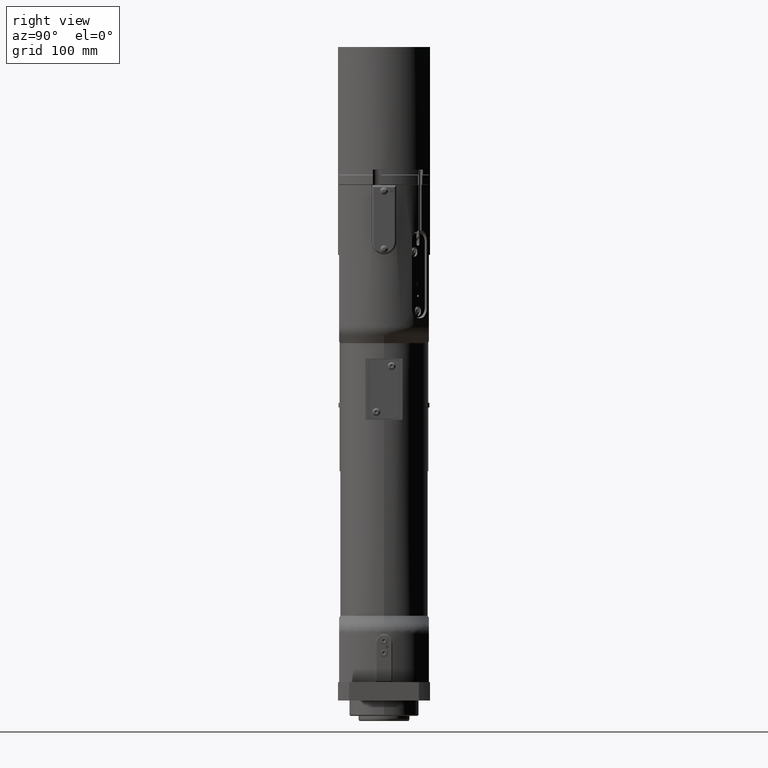
[diagram: clean part render]
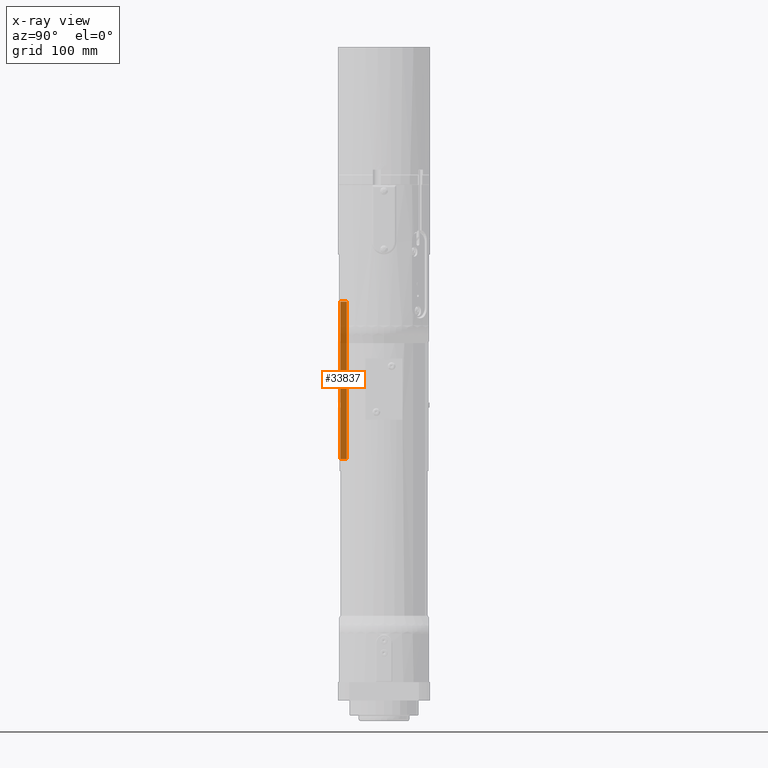
[diagram: x-ray — body ghosted, one internal face saturated and labeled with its STEP entity id]
A machine part, right view, then the same camera in x-ray: the body is ghosted and one INTERNAL B-rep face — a face not visible from any outside direction — is saturated and labeled: STEP entity #33837.
In plain terms, the highlighted planar face has unit normal (-1, 0, 0).
Its self-contained STEP definition (entity closure, byte-faithful):
#794=PLANE('',#35949);
#2266=FACE_OUTER_BOUND('',#4098,.T.);
#4098=EDGE_LOOP('',(#23063,#23064,#23065,#23066));
#8393=LINE('',#51774,#11089);
#8394=LINE('',#51778,#11090);
#8395=LINE('',#51780,#11091);
#8396=LINE('',#51781,#11092);
#11089=VECTOR('',#40845,10.);
#11090=VECTOR('',#40850,10.);
#11091=VECTOR('',#40851,10.);
#11092=VECTOR('',#40852,10.);
#13814=VERTEX_POINT('',#51771);
#13815=VERTEX_POINT('',#51773);
#13816=VERTEX_POINT('',#51777);
#13817=VERTEX_POINT('',#51779);
#17440=EDGE_CURVE('',#13814,#13815,#8393,.T.);
#17442=EDGE_CURVE('',#13814,#13816,#8394,.T.);
#17443=EDGE_CURVE('',#13816,#13817,#8395,.T.);
#17444=EDGE_CURVE('',#13815,#13817,#8396,.T.);
#23063=ORIENTED_EDGE('',*,*,#17440,.F.);
#23064=ORIENTED_EDGE('',*,*,#17442,.T.);
#23065=ORIENTED_EDGE('',*,*,#17443,.T.);
#23066=ORIENTED_EDGE('',*,*,#17444,.F.);
#33837=ADVANCED_FACE('',(#2266),#794,.F.);
#35949=AXIS2_PLACEMENT_3D('',#51776,#40848,#40849);
#40845=DIRECTION('',(5.56813700511382E-14,1.00722983923794E-14,1.));
#40848=DIRECTION('center_axis',(-1.,2.38570110806519E-14,5.56813700511379E-14));
#40849=DIRECTION('ref_axis',(5.56813700511382E-14,1.00722983923794E-14,
1.));
#40850=DIRECTION('',(2.38570110806513E-14,1.,-1.00722983923807E-14));
#40851=DIRECTION('',(5.56813700511382E-14,1.00722983923794E-14,1.));
#40852=DIRECTION('',(2.38570110806513E-14,1.,-1.00722983923807E-14));
#51771=CARTESIAN_POINT('',(-130.996933041043,-42.9000000000234,218.500000000006));
#51773=CARTESIAN_POINT('',(-130.996933041034,-42.9000000000218,372.500000000006));
#51774=CARTESIAN_POINT('',(-130.996933041038,-42.9000000000226,301.000000000006));
#51776=CARTESIAN_POINT('Origin',(-130.996933041043,-43.5000000000234,218.500000000006));
#51777=CARTESIAN_POINT('',(-130.996933041043,-36.5000000000234,218.500000000006));
#51778=CARTESIAN_POINT('',(-130.996933041043,-43.5000000000234,218.500000000006));
#51779=CARTESIAN_POINT('',(-130.996933041034,-36.5000000000218,372.500000000006));
#51780=CARTESIAN_POINT('',(-130.996933041034,-36.5000000000218,372.500000000006));
#51781=CARTESIAN_POINT('',(-130.996933041034,-43.5000000000218,372.500000000006));